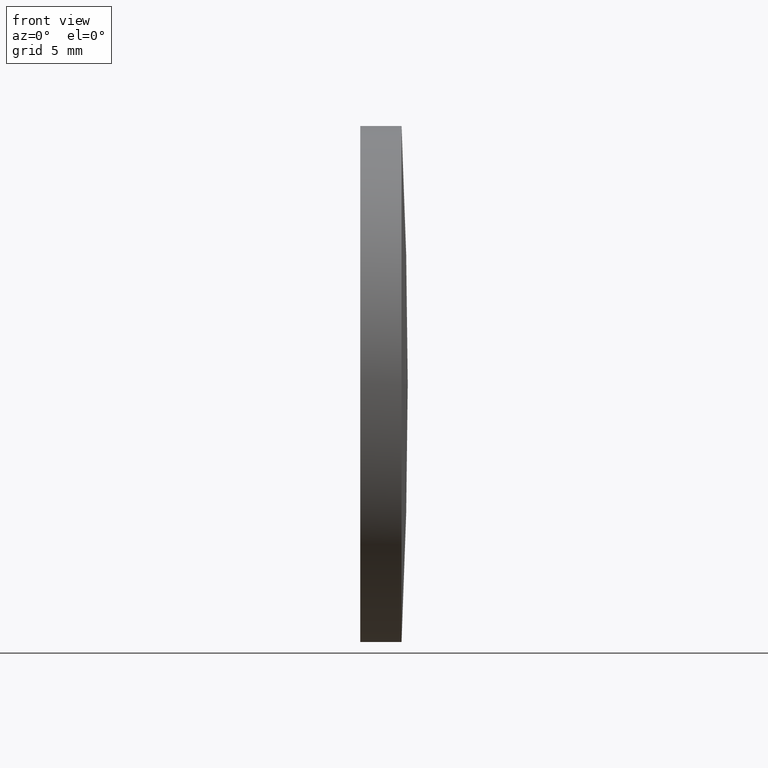
[diagram: clean part render]
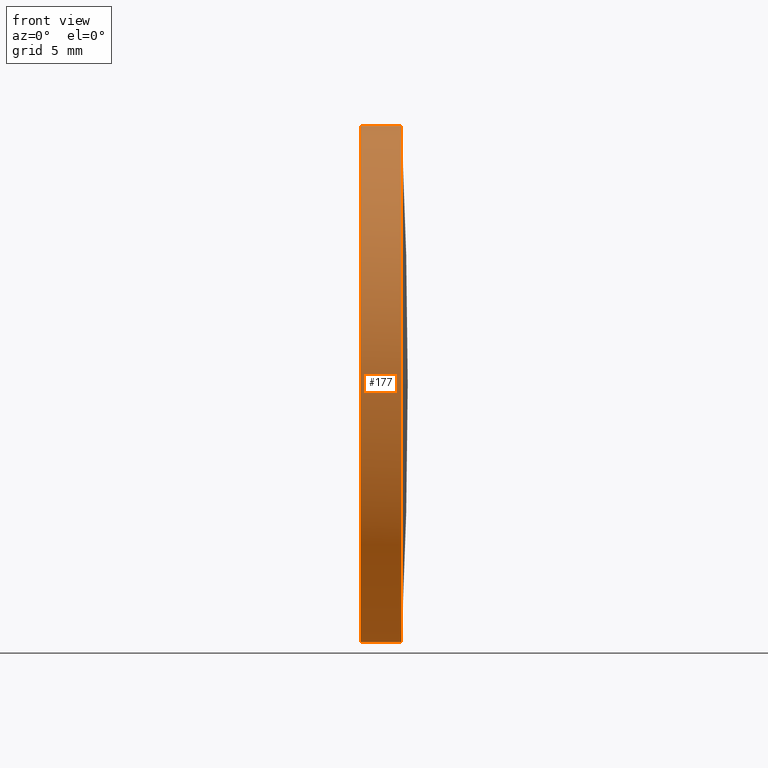
[diagram: same view with one face highlighted and labeled with its STEP entity id]
A machine part, front view. The second image highlights one B-rep face of the part: STEP entity #177.
In plain terms, the highlighted cylindrical surface (partial cylindrical patch) has radius 12.5 mm, axis along (-1, -0, -0).
Its self-contained STEP definition (entity closure, byte-faithful):
#2 = ORIENTED_EDGE ( 'NONE', *, *, #107, .T. ) ;
#4 = EDGE_LOOP ( 'NONE', ( #121, #119, #2, #38, #161 ) ) ;
#5 = CARTESIAN_POINT ( 'NONE',  ( 593.7743167103306000, 81.37318732975506900, 0.0000000000000000000 ) ) ;
#6 = AXIS2_PLACEMENT_3D ( 'NONE', #5, #78, #93 ) ;
#8 = LINE ( 'NONE', #52, #160 ) ;
#13 = FACE_OUTER_BOUND ( 'NONE', #4, .T. ) ;
#25 = CIRCLE ( 'NONE', #6, 12.49999999999999600 ) ;
#38 = ORIENTED_EDGE ( 'NONE', *, *, #146, .T. ) ;
#39 = DIRECTION ( 'NONE',  ( -1.000000000000000000, -0.0000000000000000000, -0.0000000000000000000 ) ) ;
#40 = DIRECTION ( 'NONE',  ( -1.000000000000000000, -0.0000000000000000000, -0.0000000000000000000 ) ) ;
#42 = CARTESIAN_POINT ( 'NONE',  ( 591.7743167103306000, 81.37318732975506900, -12.49999999999999600 ) ) ;
#47 = VERTEX_POINT ( 'NONE', #76 ) ;
#50 = CARTESIAN_POINT ( 'NONE',  ( 591.7743167103306000, 81.37318732975506900, 12.49999999999999600 ) ) ;
#52 = CARTESIAN_POINT ( 'NONE',  ( 589.4087008075696300, 81.37318732975506900, -12.49999999999999600 ) ) ;
#59 = EDGE_CURVE ( 'NONE', #75, #176, #61, .T. ) ;
#61 = CIRCLE ( 'NONE', #185, 12.49999999999999600 ) ;
#67 = DIRECTION ( 'NONE',  ( -1.000000000000000000, -0.0000000000000000000, -0.0000000000000000000 ) ) ;
#69 = DIRECTION ( 'NONE',  ( 0.0000000000000000000, 0.0000000000000000000, 1.000000000000000000 ) ) ;
#72 = VECTOR ( 'NONE', #67, 1000.000000000000000 ) ;
#75 = VERTEX_POINT ( 'NONE', #153 ) ;
#76 = CARTESIAN_POINT ( 'NONE',  ( 593.7743167103306000, 81.37318732975506900, 12.49999999999999600 ) ) ;
#78 = DIRECTION ( 'NONE',  ( -1.000000000000000000, -0.0000000000000000000, -0.0000000000000000000 ) ) ;
#83 = CYLINDRICAL_SURFACE ( 'NONE', #112, 12.49999999999999600 ) ;
#84 = VERTEX_POINT ( 'NONE', #50 ) ;
#86 = LINE ( 'NONE', #125, #72 ) ;
#92 = CARTESIAN_POINT ( 'NONE',  ( 589.4087008075696300, 81.37318732975506900, 0.0000000000000000000 ) ) ;
#93 = DIRECTION ( 'NONE',  ( 0.0000000000000000000, 0.0000000000000000000, 1.000000000000000000 ) ) ;
#102 = EDGE_CURVE ( 'NONE', #118, #84, #137, .T. ) ;
#107 = EDGE_CURVE ( 'NONE', #176, #47, #25, .T. ) ;
#108 = CARTESIAN_POINT ( 'NONE',  ( 593.7743167103306000, 68.87318732975572300, 0.0000000000000000000 ) ) ;
#110 = CARTESIAN_POINT ( 'NONE',  ( 591.7743167103306000, 81.37318732975506900, 0.0000000000000000000 ) ) ;
#112 = AXIS2_PLACEMENT_3D ( 'NONE', #92, #40, #69 ) ;
#118 = VERTEX_POINT ( 'NONE', #42 ) ;
#119 = ORIENTED_EDGE ( 'NONE', *, *, #59, .T. ) ;
#121 = ORIENTED_EDGE ( 'NONE', *, *, #174, .F. ) ;
#125 = CARTESIAN_POINT ( 'NONE',  ( 589.4087008075696300, 81.37318732975506900, 12.49999999999999600 ) ) ;
#126 = DIRECTION ( 'NONE',  ( -1.000000000000000000, -0.0000000000000000000, -0.0000000000000000000 ) ) ;
#129 = AXIS2_PLACEMENT_3D ( 'NONE', #110, #39, #154 ) ;
#137 = CIRCLE ( 'NONE', #129, 12.49999999999999600 ) ;
#146 = EDGE_CURVE ( 'NONE', #47, #84, #86, .T. ) ;
#153 = CARTESIAN_POINT ( 'NONE',  ( 593.7743167103306000, 81.37318732975506900, -12.49999999999999600 ) ) ;
#154 = DIRECTION ( 'NONE',  ( 0.0000000000000000000, 0.0000000000000000000, 1.000000000000000000 ) ) ;
#157 = CARTESIAN_POINT ( 'NONE',  ( 593.7743167103306000, 81.37318732975506900, 0.0000000000000000000 ) ) ;
#160 = VECTOR ( 'NONE', #167, 1000.000000000000000 ) ;
#161 = ORIENTED_EDGE ( 'NONE', *, *, #102, .F. ) ;
#167 = DIRECTION ( 'NONE',  ( -1.000000000000000000, -0.0000000000000000000, -0.0000000000000000000 ) ) ;
#174 = EDGE_CURVE ( 'NONE', #75, #118, #8, .T. ) ;
#176 = VERTEX_POINT ( 'NONE', #108 ) ;
#177 = ADVANCED_FACE ( 'NONE', ( #13 ), #83, .T. ) ;
#179 = DIRECTION ( 'NONE',  ( 0.0000000000000000000, 0.0000000000000000000, 1.000000000000000000 ) ) ;
#185 = AXIS2_PLACEMENT_3D ( 'NONE', #157, #126, #179 ) ;